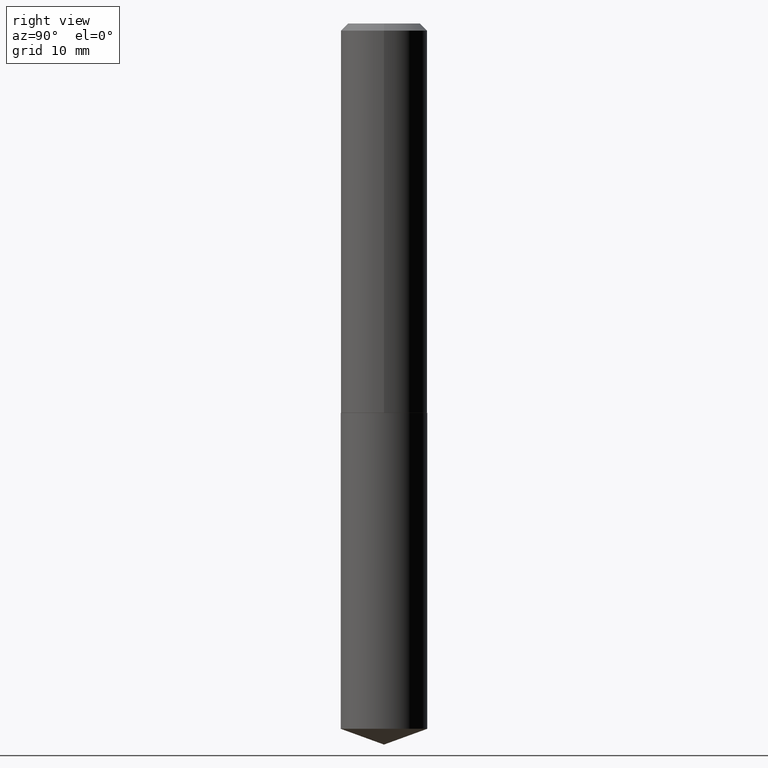
[diagram: clean part render]
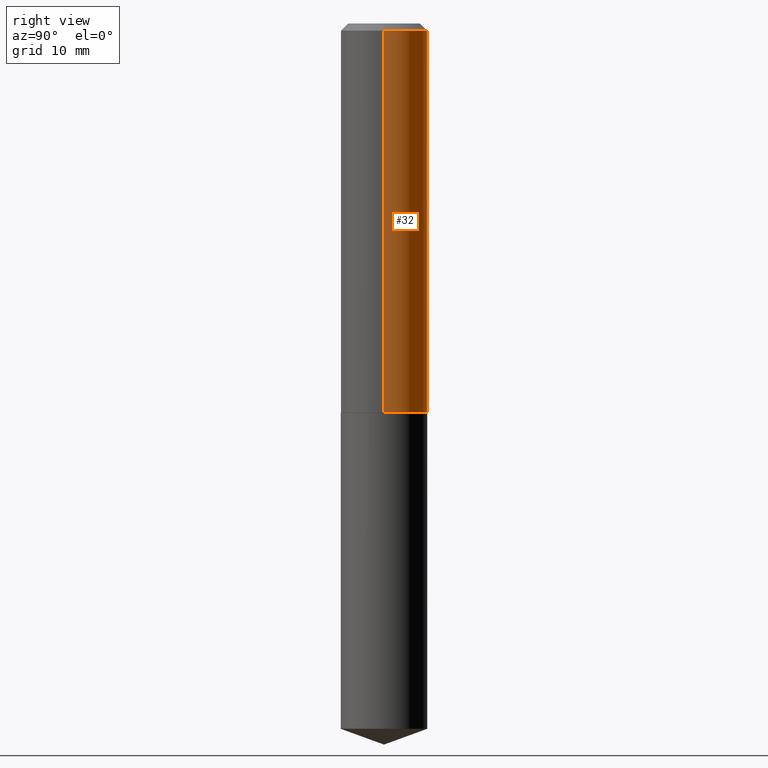
[diagram: same view with one face highlighted and labeled with its STEP entity id]
A machine part, right view. The second image highlights one B-rep face of the part: STEP entity #32.
In plain terms, the highlighted cylindrical surface (partial cylindrical patch) has radius 4.7625 mm, axis along (-0, 0, 1).
Its self-contained STEP definition (entity closure, byte-faithful):
#7 = DIRECTION ( 'NONE',  ( 1.000000000000000000, -6.982962677686265922E-15, 0.000000000000000000 ) ) ;
#20 = ORIENTED_EDGE ( 'NONE', *, *, #163, .T. ) ;
#26 = LINE ( 'NONE', #154, #294 ) ;
#30 = CIRCLE ( 'NONE', #125, 0.1875000000000002498 ) ;
#32 = ADVANCED_FACE ( 'NONE', ( #325 ), #354, .T. ) ;
#41 = EDGE_LOOP ( 'NONE', ( #80, #20, #343, #287 ) ) ;
#48 = VERTEX_POINT ( 'NONE', #156 ) ;
#66 = CARTESIAN_POINT ( 'NONE',  ( 0.1875000000000001110, -1.309305502066175797E-15, 9.142831454617385217E-30 ) ) ;
#72 = CARTESIAN_POINT ( 'NONE',  ( 7.642090019328606165E-31, -1.091087918388490760E-16, -0.03125000000000022204 ) ) ;
#80 = ORIENTED_EDGE ( 'NONE', *, *, #237, .T. ) ;
#125 = AXIS2_PLACEMENT_3D ( 'NONE', #136, #249, #332 ) ;
#128 = CARTESIAN_POINT ( 'NONE',  ( 0.1875000000000002498, -7.199434520694564708E-15, -1.687000000000000277 ) ) ;
#132 = AXIS2_PLACEMENT_3D ( 'NONE', #210, #267, #389 ) ;
#136 = CARTESIAN_POINT ( 'NONE',  ( 4.125505876034326327E-29, -5.890129018628388122E-15, -1.687000000000000277 ) ) ;
#154 = CARTESIAN_POINT ( 'NONE',  ( -0.1875000000000001110, 1.332267629550188637E-15, -9.223003294227953596E-30 ) ) ;
#156 = CARTESIAN_POINT ( 'NONE',  ( -0.1875000000000002498, -4.557861389078198695E-15, -1.687000000000000277 ) ) ;
#159 = CARTESIAN_POINT ( 'NONE',  ( -0.1875000000000000278, -1.667351275683429579E-15, -0.03125000000000022204 ) ) ;
#163 = EDGE_CURVE ( 'NONE', #48, #283, #26, .T. ) ;
#210 = CARTESIAN_POINT ( 'NONE',  ( 0.000000000000000000, 0.000000000000000000, 0.000000000000000000 ) ) ;
#237 = EDGE_CURVE ( 'NONE', #340, #48, #30, .T. ) ;
#249 = DIRECTION ( 'NONE',  ( -2.445468806185136597E-29, 3.491481338843145583E-15, 1.000000000000000000 ) ) ;
#254 = AXIS2_PLACEMENT_3D ( 'NONE', #72, #303, #7 ) ;
#266 = DIRECTION ( 'NONE',  ( -2.445468806185136877E-29, 3.491481338843145188E-15, 1.000000000000000000 ) ) ;
#267 = DIRECTION ( 'NONE',  ( -2.445468806185136597E-29, 3.491481338843145583E-15, 1.000000000000000000 ) ) ;
#283 = VERTEX_POINT ( 'NONE', #159 ) ;
#287 = ORIENTED_EDGE ( 'NONE', *, *, #367, .F. ) ;
#294 = VECTOR ( 'NONE', #266, 39.37007874015748143 ) ;
#303 = DIRECTION ( 'NONE',  ( -2.445468806185136597E-29, 3.491481338843145583E-15, 1.000000000000000000 ) ) ;
#304 = EDGE_CURVE ( 'NONE', #369, #283, #358, .T. ) ;
#313 = DIRECTION ( 'NONE',  ( -2.445468806185136877E-29, 3.491481338843145188E-15, 1.000000000000000000 ) ) ;
#325 = FACE_OUTER_BOUND ( 'NONE', #41, .T. ) ;
#328 = LINE ( 'NONE', #66, #387 ) ;
#332 = DIRECTION ( 'NONE',  ( 1.000000000000000000, -6.982962677686269077E-15, 0.000000000000000000 ) ) ;
#340 = VERTEX_POINT ( 'NONE', #128 ) ;
#343 = ORIENTED_EDGE ( 'NONE', *, *, #304, .F. ) ;
#354 = CYLINDRICAL_SURFACE ( 'NONE', #132, 0.1875000000000001110 ) ;
#358 = CIRCLE ( 'NONE', #254, 0.1875000000000000278 ) ;
#367 = EDGE_CURVE ( 'NONE', #340, #369, #328, .T. ) ;
#369 = VERTEX_POINT ( 'NONE', #377 ) ;
#377 = CARTESIAN_POINT ( 'NONE',  ( 0.1875000000000000278, -1.418414293905024109E-15, -0.03125000000000022204 ) ) ;
#387 = VECTOR ( 'NONE', #313, 39.37007874015748143 ) ;
#389 = DIRECTION ( 'NONE',  ( 1.000000000000000000, -6.982962677686266711E-15, 4.876176775795935793E-29 ) ) ;